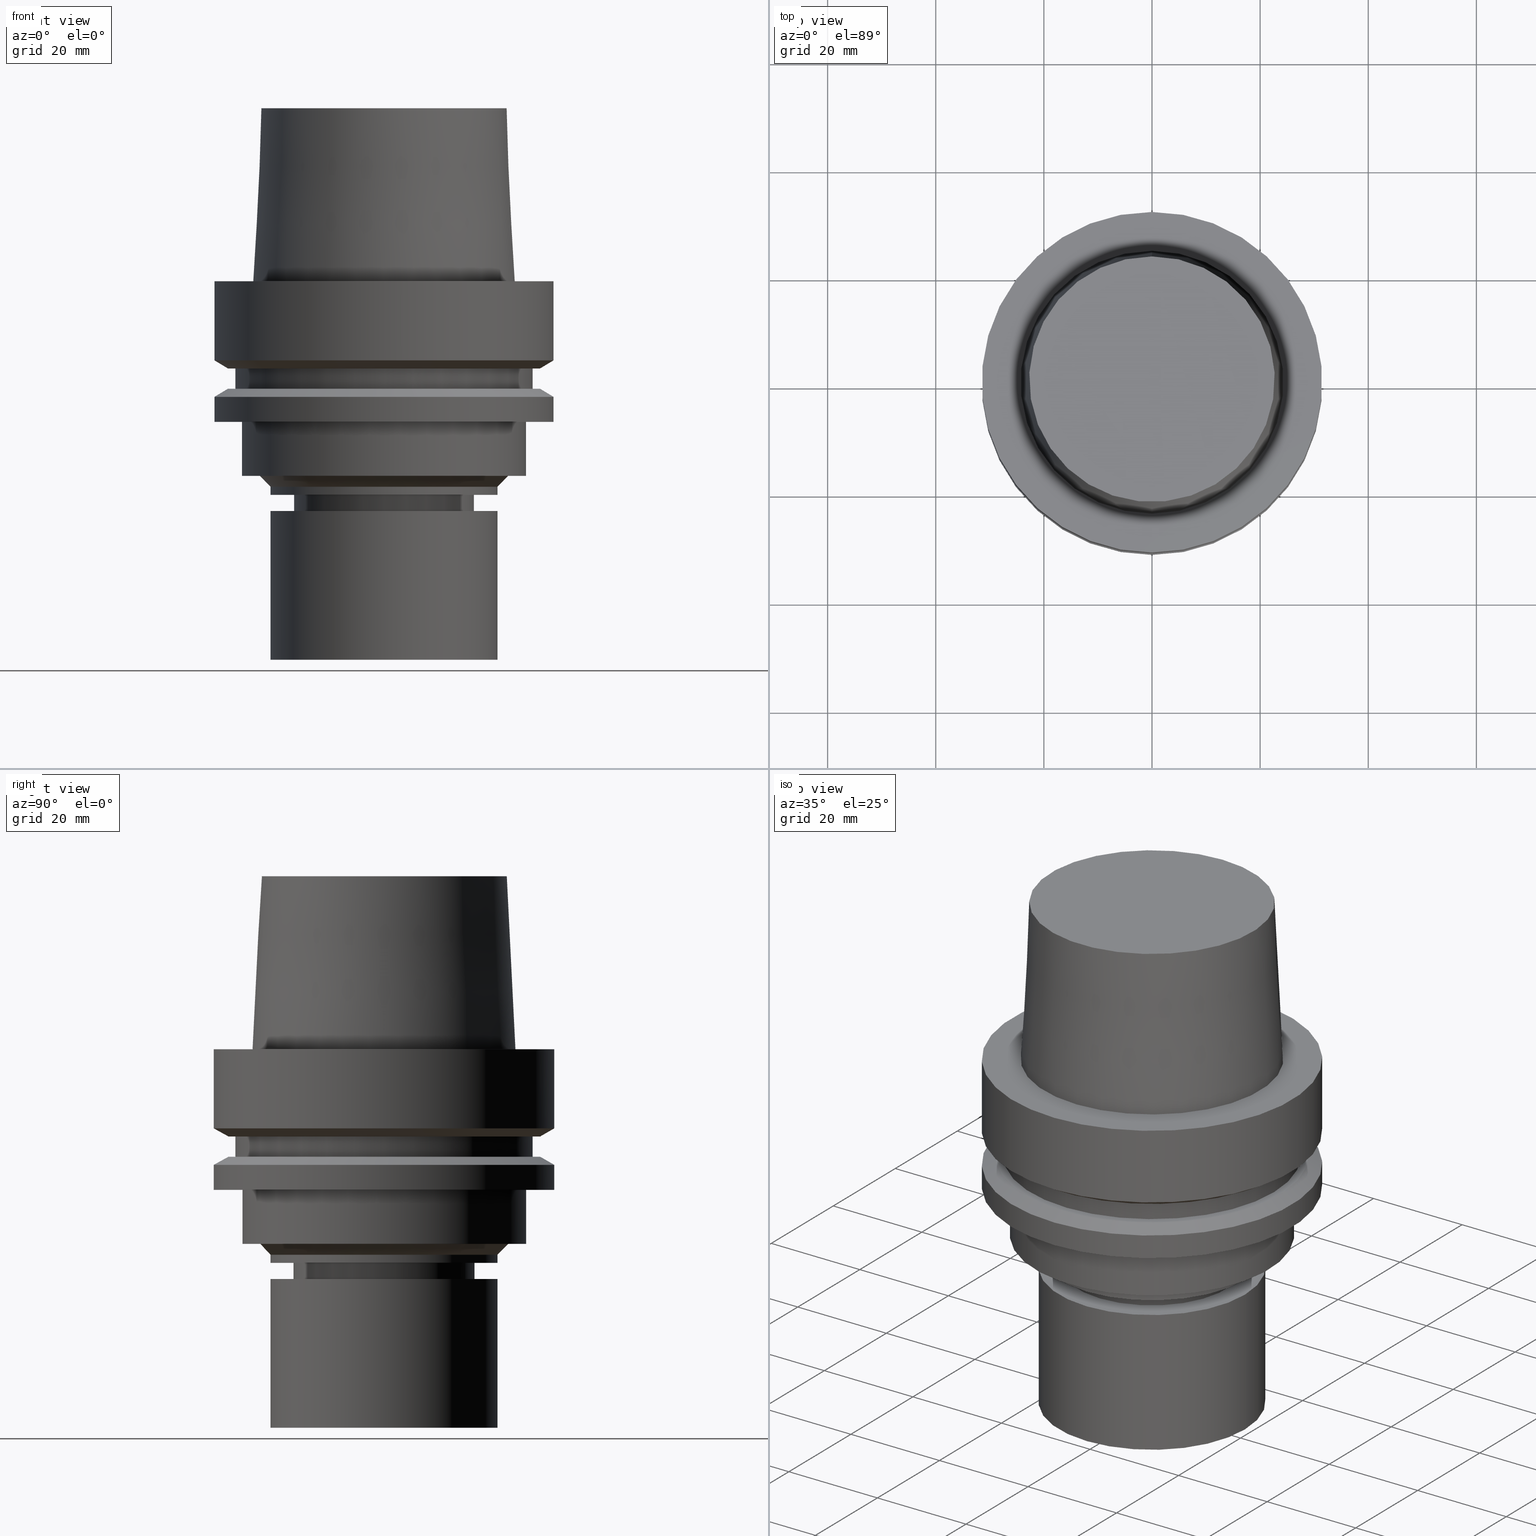
[diagram: canonical four-view strip — front | top / right | iso, engineering-drawing reading convention]
A machine part, canonical four-view strip (front | top / right | iso — engineering-drawing reading convention). The complete STEP part file that produces these views, byte-faithful:
ISO-10303-21;
HEADER;
FILE_DESCRIPTION((''),'1');
FILE_NAME('U:/Translate/02_3D_Field-HP\X2\FF71FF6FFF8CFF9F5916\X0\2013/02_Step_Field-HP\X2\FF71FF6FFF8CFF9F5916\X0\2013/HSK-A63-MEGAER25-70NL.stp','2016-06-22T00:03:57',(''),(''),'Spatial Interop R21 SP3','Kubotek KeyCreator 2011 V10.0.2 (22737)',' ');
FILE_SCHEMA(('automotive_design'));
ENDSEC;
DATA;
#1=MECHANICAL_DESIGN_GEOMETRIC_PRESENTATION_REPRESENTATION(' ',(#14,#15,#16,#17,#18,#19,#20,#21,#22,#23,#24,#25,#26,#27,#28,#29,#30,#31,#32,#33,#34,#35,#36,#37,#38,#39,#40,#41,#42,#43,#44,#45,#46,#47,#48,#49,#50,#51,#52,#53,#54,#55,#56,#57,#58,#59,#60,#61),#10);
#2=PRODUCT_DEFINITION_CONTEXT('',#62,'design');
#3=APPLICATION_PROTOCOL_DEFINITION('INTERNATIONAL STANDARD','automotive_design',1994,#62);
#4=PRODUCT_CATEGORY_RELATIONSHIP('NONE','NONE',#63,#64);
#5=SHAPE_DEFINITION_REPRESENTATION(#65,#66);
#6=PRODUCT_DEFINITION_CONTEXT('',#67,'design');
#7=APPLICATION_PROTOCOL_DEFINITION('INTERNATIONAL STANDARD','automotive_design',1994,#67);
#8=PRODUCT_CATEGORY_RELATIONSHIP('NONE','NONE',#68,#69);
#9=SHAPE_DEFINITION_REPRESENTATION(#70,#71);
#10= (GEOMETRIC_REPRESENTATION_CONTEXT(3)GLOBAL_UNCERTAINTY_ASSIGNED_CONTEXT((#74))GLOBAL_UNIT_ASSIGNED_CONTEXT((#76,#77,#78))REPRESENTATION_CONTEXT('NONE','WORKSPACE'));
#14=STYLED_ITEM('',(#80),#81);
#15=STYLED_ITEM('',(#82),#83);
#16=STYLED_ITEM('',(#84,#85),#86);
#17=STYLED_ITEM('',(#87,#88),#89);
#18=STYLED_ITEM('',(#90),#91);
#19=STYLED_ITEM('',(#92),#93);
#20=STYLED_ITEM('',(#94,#95),#96);
#21=STYLED_ITEM('',(#97),#98);
#22=STYLED_ITEM('',(#99),#100);
#23=STYLED_ITEM('',(#101,#102),#103);
#24=STYLED_ITEM('',(#104),#105);
#25=STYLED_ITEM('',(#106,#107),#108);
#26=STYLED_ITEM('',(#109,#110),#111);
#27=STYLED_ITEM('',(#112),#113);
#28=STYLED_ITEM('',(#114),#115);
#29=STYLED_ITEM('',(#116,#117),#118);
#30=STYLED_ITEM('',(#119),#120);
#31=STYLED_ITEM('',(#121,#122),#123);
#32=STYLED_ITEM('',(#124,#125),#126);
#33=STYLED_ITEM('',(#127),#128);
#34=STYLED_ITEM('',(#129,#130),#131);
#35=STYLED_ITEM('',(#132,#133),#134);
#36=STYLED_ITEM('',(#135),#136);
#37=STYLED_ITEM('',(#137),#138);
#38=STYLED_ITEM('',(#139),#140);
#39=STYLED_ITEM('',(#141),#142);
#40=STYLED_ITEM('',(#143),#144);
#41=STYLED_ITEM('',(#145,#146),#147);
#42=STYLED_ITEM('',(#148,#149),#150);
#43=STYLED_ITEM('',(#151),#152);
#44=STYLED_ITEM('',(#153,#154),#155);
#45=STYLED_ITEM('',(#156,#157),#158);
#46=STYLED_ITEM('',(#159,#160),#161);
#47=STYLED_ITEM('',(#162),#163);
#48=STYLED_ITEM('',(#164,#165),#166);
#49=STYLED_ITEM('',(#167),#168);
#50=STYLED_ITEM('',(#169,#170),#171);
#51=STYLED_ITEM('',(#172,#173),#174);
#52=STYLED_ITEM('',(#175),#176);
#53=STYLED_ITEM('',(#177),#178);
#54=STYLED_ITEM('',(#179,#180),#181);
#55=STYLED_ITEM('',(#182,#183),#184);
#56=STYLED_ITEM('',(#185,#186),#187);
#57=STYLED_ITEM('',(#188,#189),#190);
#58=STYLED_ITEM('',(#191),#192);
#59=STYLED_ITEM('',(#193,#194),#195);
#60=STYLED_ITEM('',(#196,#197),#198);
#61=STYLED_ITEM('',(#199,#200),#201);
#62=APPLICATION_CONTEXT(' ');
#63=PRODUCT_CATEGORY('part','NONE');
#64=PRODUCT_RELATED_PRODUCT_CATEGORY('detail',' ',(#202));
#65=PRODUCT_DEFINITION_SHAPE('NONE','NONE',#203);
#66=ADVANCED_BREP_SHAPE_REPRESENTATION('Unnamed[1]',(#158,#204),#10);
#67=APPLICATION_CONTEXT(' ');
#68=PRODUCT_CATEGORY('part','NONE');
#69=PRODUCT_RELATED_PRODUCT_CATEGORY('detail',' ',(#205));
#70=PRODUCT_DEFINITION_SHAPE('NONE','NONE',#206);
#71=ADVANCED_BREP_SHAPE_REPRESENTATION('Unnamed[1]',(#89,#207),#10);
#74=UNCERTAINTY_MEASURE_WITH_UNIT(LENGTH_MEASURE(1.0E-006),#76,'','');
#76= (CONVERSION_BASED_UNIT('MILLIMETRE',#210)LENGTH_UNIT()NAMED_UNIT(#213));
#77= (NAMED_UNIT(#215)PLANE_ANGLE_UNIT()SI_UNIT($,.RADIAN.));
#78= (NAMED_UNIT(#215)SOLID_ANGLE_UNIT()SI_UNIT($,.STERADIAN.));
#80=PRESENTATION_STYLE_ASSIGNMENT((#221));
#81=EDGE_CURVE('Unnamed[1]',#222,#222,#223,.T.);
#82=PRESENTATION_STYLE_ASSIGNMENT((#224));
#83=EDGE_CURVE('Unnamed[1]',#225,#225,#226,.T.);
#84=PRESENTATION_STYLE_ASSIGNMENT((#227));
#85=PRESENTATION_STYLE_ASSIGNMENT((#228));
#86=ADVANCED_FACE('Unnamed[1]',(#229,#230),#231,.T.);
#87=PRESENTATION_STYLE_ASSIGNMENT((#232));
#88=PRESENTATION_STYLE_ASSIGNMENT((#233));
#89=MANIFOLD_SOLID_BREP('Unnamed[1]',#234);
#90=PRESENTATION_STYLE_ASSIGNMENT((#235));
#91=EDGE_CURVE('Unnamed[1]',#236,#236,#237,.T.);
#92=PRESENTATION_STYLE_ASSIGNMENT((#238));
#93=EDGE_CURVE('Unnamed[1]',#239,#239,#240,.T.);
#94=PRESENTATION_STYLE_ASSIGNMENT((#241));
#95=PRESENTATION_STYLE_ASSIGNMENT((#242));
#96=ADVANCED_FACE('Unnamed[1]',(#243,#244),#245,.T.);
#97=PRESENTATION_STYLE_ASSIGNMENT((#246));
#98=EDGE_CURVE('Unnamed[1]',#247,#247,#248,.T.);
#99=PRESENTATION_STYLE_ASSIGNMENT((#249));
#100=EDGE_CURVE('Unnamed[1]',#250,#250,#251,.T.);
#101=PRESENTATION_STYLE_ASSIGNMENT((#252));
#102=PRESENTATION_STYLE_ASSIGNMENT((#253));
#103=ADVANCED_FACE('Unnamed[1]',(#254,#255),#256,.T.);
#104=PRESENTATION_STYLE_ASSIGNMENT((#257));
#105=EDGE_CURVE('Unnamed[1]',#258,#258,#259,.T.);
#106=PRESENTATION_STYLE_ASSIGNMENT((#260));
#107=PRESENTATION_STYLE_ASSIGNMENT((#261));
#108=ADVANCED_FACE('Unnamed[1]',(#262,#263),#264,.T.);
#109=PRESENTATION_STYLE_ASSIGNMENT((#265));
#110=PRESENTATION_STYLE_ASSIGNMENT((#266));
#111=ADVANCED_FACE('Unnamed[1]',(#267,#268),#269,.T.);
#112=PRESENTATION_STYLE_ASSIGNMENT((#270));
#113=EDGE_CURVE('Unnamed[1]',#271,#271,#272,.T.);
#114=PRESENTATION_STYLE_ASSIGNMENT((#273));
#115=EDGE_CURVE('Unnamed[1]',#274,#274,#275,.T.);
#116=PRESENTATION_STYLE_ASSIGNMENT((#276));
#117=PRESENTATION_STYLE_ASSIGNMENT((#277));
#118=ADVANCED_FACE('Unnamed[1]',(#278,#279),#280,.T.);
#119=PRESENTATION_STYLE_ASSIGNMENT((#281));
#120=EDGE_CURVE('Unnamed[1]',#282,#282,#283,.T.);
#121=PRESENTATION_STYLE_ASSIGNMENT((#284));
#122=PRESENTATION_STYLE_ASSIGNMENT((#285));
#123=ADVANCED_FACE('Unnamed[1]',(#286,#287),#288,.T.);
#124=PRESENTATION_STYLE_ASSIGNMENT((#289));
#125=PRESENTATION_STYLE_ASSIGNMENT((#290));
#126=ADVANCED_FACE('Unnamed[1]',(#291,#292),#293,.T.);
#127=PRESENTATION_STYLE_ASSIGNMENT((#294));
#128=EDGE_CURVE('Unnamed[1]',#295,#295,#296,.T.);
#129=PRESENTATION_STYLE_ASSIGNMENT((#297));
#130=PRESENTATION_STYLE_ASSIGNMENT((#298));
#131=ADVANCED_FACE('Unnamed[1]',(#299,#300),#301,.T.);
#132=PRESENTATION_STYLE_ASSIGNMENT((#302));
#133=PRESENTATION_STYLE_ASSIGNMENT((#303));
#134=ADVANCED_FACE('Unnamed[1]',(#304,#305),#306,.T.);
#135=PRESENTATION_STYLE_ASSIGNMENT((#307));
#136=EDGE_CURVE('Unnamed[1]',#308,#308,#309,.T.);
#137=PRESENTATION_STYLE_ASSIGNMENT((#310));
#138=EDGE_CURVE('Unnamed[1]',#311,#311,#312,.T.);
#139=PRESENTATION_STYLE_ASSIGNMENT((#313));
#140=EDGE_CURVE('Unnamed[1]',#314,#314,#315,.T.);
#141=PRESENTATION_STYLE_ASSIGNMENT((#316));
#142=EDGE_CURVE('Unnamed[1]',#317,#317,#318,.T.);
#143=PRESENTATION_STYLE_ASSIGNMENT((#319));
#144=EDGE_CURVE('Unnamed[1]',#320,#320,#321,.T.);
#145=PRESENTATION_STYLE_ASSIGNMENT((#322));
#146=PRESENTATION_STYLE_ASSIGNMENT((#323));
#147=ADVANCED_FACE('Unnamed[1]',(#324,#325),#326,.T.);
#148=PRESENTATION_STYLE_ASSIGNMENT((#327));
#149=PRESENTATION_STYLE_ASSIGNMENT((#328));
#150=ADVANCED_FACE('Unnamed[1]',(#329,#330),#331,.T.);
#151=PRESENTATION_STYLE_ASSIGNMENT((#332));
#152=EDGE_CURVE('Unnamed[1]',#333,#333,#334,.T.);
#153=PRESENTATION_STYLE_ASSIGNMENT((#335));
#154=PRESENTATION_STYLE_ASSIGNMENT((#336));
#155=ADVANCED_FACE('Unnamed[1]',(#337,#338),#339,.T.);
#156=PRESENTATION_STYLE_ASSIGNMENT((#340));
#157=PRESENTATION_STYLE_ASSIGNMENT((#341));
#158=MANIFOLD_SOLID_BREP('Unnamed[1]',#342);
#159=PRESENTATION_STYLE_ASSIGNMENT((#343));
#160=PRESENTATION_STYLE_ASSIGNMENT((#344));
#161=ADVANCED_FACE('Unnamed[1]',(#345,#346),#347,.T.);
#162=PRESENTATION_STYLE_ASSIGNMENT((#348));
#163=EDGE_CURVE('Unnamed[1]',#349,#349,#350,.T.);
#164=PRESENTATION_STYLE_ASSIGNMENT((#351));
#165=PRESENTATION_STYLE_ASSIGNMENT((#352));
#166=ADVANCED_FACE('Unnamed[1]',(#353,#354),#355,.T.);
#167=PRESENTATION_STYLE_ASSIGNMENT((#356));
#168=EDGE_CURVE('Unnamed[1]',#357,#357,#358,.T.);
#169=PRESENTATION_STYLE_ASSIGNMENT((#359));
#170=PRESENTATION_STYLE_ASSIGNMENT((#360));
#171=ADVANCED_FACE('Unnamed[1]',(#361,#362),#363,.T.);
#172=PRESENTATION_STYLE_ASSIGNMENT((#364));
#173=PRESENTATION_STYLE_ASSIGNMENT((#365));
#174=ADVANCED_FACE('Unnamed[1]',(#366,#367),#368,.T.);
#175=PRESENTATION_STYLE_ASSIGNMENT((#369));
#176=EDGE_CURVE('Unnamed[1]',#370,#370,#371,.T.);
#177=PRESENTATION_STYLE_ASSIGNMENT((#372));
#178=EDGE_CURVE('Unnamed[1]',#373,#373,#374,.T.);
#179=PRESENTATION_STYLE_ASSIGNMENT((#375));
#180=PRESENTATION_STYLE_ASSIGNMENT((#376));
#181=ADVANCED_FACE('Unnamed[1]',(#377,#378),#379,.T.);
#182=PRESENTATION_STYLE_ASSIGNMENT((#380));
#183=PRESENTATION_STYLE_ASSIGNMENT((#381));
#184=ADVANCED_FACE('Unnamed[1]',(#382),#383,.T.);
#185=PRESENTATION_STYLE_ASSIGNMENT((#384));
#186=PRESENTATION_STYLE_ASSIGNMENT((#385));
#187=ADVANCED_FACE('Unnamed[1]',(#386),#387,.T.);
#188=PRESENTATION_STYLE_ASSIGNMENT((#388));
#189=PRESENTATION_STYLE_ASSIGNMENT((#389));
#190=ADVANCED_FACE('Unnamed[1]',(#390),#391,.T.);
#191=PRESENTATION_STYLE_ASSIGNMENT((#392));
#192=EDGE_CURVE('Unnamed[1]',#393,#393,#394,.T.);
#193=PRESENTATION_STYLE_ASSIGNMENT((#395));
#194=PRESENTATION_STYLE_ASSIGNMENT((#396));
#195=ADVANCED_FACE('Unnamed[1]',(#397),#398,.T.);
#196=PRESENTATION_STYLE_ASSIGNMENT((#399));
#197=PRESENTATION_STYLE_ASSIGNMENT((#400));
#198=ADVANCED_FACE('Unnamed[1]',(#401,#402),#403,.T.);
#199=PRESENTATION_STYLE_ASSIGNMENT((#404));
#200=PRESENTATION_STYLE_ASSIGNMENT((#405));
#201=ADVANCED_FACE('Unnamed[1]',(#406,#407),#408,.T.);
#202=PRODUCT('Unnamed[1]','Unnamed[1]','PART-Unnamed[1]-DESC',(#409));
#203=PRODUCT_DEFINITION('NONE','NONE',#410,#2);
#204=AXIS2_PLACEMENT_3D('',#411,#412,#413);
#205=PRODUCT('Unnamed[1]','Unnamed[1]','PART-Unnamed[1]-DESC',(#414));
#206=PRODUCT_DEFINITION('NONE','NONE',#415,#6);
#207=AXIS2_PLACEMENT_3D('',#416,#417,#418);
#210=LENGTH_MEASURE_WITH_UNIT(LENGTH_MEASURE(1.0),#419);
#213=DIMENSIONAL_EXPONENTS(1.0,0.0,0.0,0.0,0.0,0.0,0.0);
#215=DIMENSIONAL_EXPONENTS(0.0,0.0,0.0,0.0,0.0,0.0,0.0);
#221=CURVE_STYLE('',#420,POSITIVE_LENGTH_MEASURE(1000.0),#421);
#222=VERTEX_POINT('',#422);
#223=CIRCLE('',#423,27.4999999999989);
#224=CURVE_STYLE('',#424,POSITIVE_LENGTH_MEASURE(1000.0),#425);
#225=VERTEX_POINT('',#426);
#226=CIRCLE('',#427,24.315);
#227=SURFACE_STYLE_USAGE(.BOTH.,#428);
#228=CURVE_STYLE('',#429,POSITIVE_LENGTH_MEASURE(1000.0),#430);
#229=FACE_BOUND('',#431,.T.);
#230=FACE_BOUND('',#432,.T.);
#231=CYLINDRICAL_SURFACE('',#433,16.7499999999962);
#232=SURFACE_STYLE_USAGE(.BOTH.,#434);
#233=CURVE_STYLE('',#435,POSITIVE_LENGTH_MEASURE(1000.0),#436);
#234=CLOSED_SHELL('',(#187,#190,#108));
#235=CURVE_STYLE('',#437,POSITIVE_LENGTH_MEASURE(1000.0),#438);
#236=VERTEX_POINT('',#439);
#237=CIRCLE('',#440,26.3);
#238=CURVE_STYLE('',#441,POSITIVE_LENGTH_MEASURE(1000.0),#442);
#239=VERTEX_POINT('',#443);
#240=CIRCLE('',#444,21.0);
#241=SURFACE_STYLE_USAGE(.BOTH.,#445);
#242=CURVE_STYLE('',#446,POSITIVE_LENGTH_MEASURE(1000.0),#447);
#243=FACE_BOUND('',#448,.T.);
#244=FACE_BOUND('',#449,.T.);
#245=CONICAL_SURFACE('',#450,23.515,0.0499583957219433);
#246=CURVE_STYLE('',#451,POSITIVE_LENGTH_MEASURE(1000.0),#452);
#247=VERTEX_POINT('',#453);
#248=CIRCLE('',#454,22.715);
#249=CURVE_STYLE('',#455,POSITIVE_LENGTH_MEASURE(1000.0),#456);
#250=VERTEX_POINT('',#457);
#251=CIRCLE('',#458,16.7500000000017);
#252=SURFACE_STYLE_USAGE(.BOTH.,#459);
#253=CURVE_STYLE('',#460,POSITIVE_LENGTH_MEASURE(1000.0),#461);
#254=FACE_BOUND('',#462,.T.);
#255=FACE_BOUND('',#463,.T.);
#256=CONICAL_SURFACE('',#464,22.0,0.785398163397448);
#257=CURVE_STYLE('',#465,POSITIVE_LENGTH_MEASURE(1000.0),#466);
#258=VERTEX_POINT('',#467);
#259=CIRCLE('',#468,31.5000000000001);
#260=SURFACE_STYLE_USAGE(.BOTH.,#469);
#261=CURVE_STYLE('',#470,POSITIVE_LENGTH_MEASURE(1000.0),#471);
#262=FACE_BOUND('',#472,.T.);
#263=FACE_BOUND('',#473,.T.);
#264=CYLINDRICAL_SURFACE('',#474,21.0);
#265=SURFACE_STYLE_USAGE(.BOTH.,#475);
#266=CURVE_STYLE('',#476,POSITIVE_LENGTH_MEASURE(1000.0),#477);
#267=FACE_BOUND('',#478,.T.);
#268=FACE_OUTER_BOUND('',#479,.T.);
#269=PLANE('',#480);
#270=CURVE_STYLE('',#481,POSITIVE_LENGTH_MEASURE(1000.0),#482);
#271=VERTEX_POINT('',#483);
#272=CIRCLE('',#484,16.0);
#273=CURVE_STYLE('',#485,POSITIVE_LENGTH_MEASURE(1000.0),#486);
#274=VERTEX_POINT('',#487);
#275=CIRCLE('',#488,31.5);
#276=SURFACE_STYLE_USAGE(.BOTH.,#489);
#277=CURVE_STYLE('',#490,POSITIVE_LENGTH_MEASURE(1000.0),#491);
#278=FACE_BOUND('',#492,.T.);
#279=FACE_BOUND('',#493,.T.);
#280=CONICAL_SURFACE('',#494,30.1987976320959,1.04719755119657);
#281=CURVE_STYLE('',#495,POSITIVE_LENGTH_MEASURE(1000.0),#496);
#282=VERTEX_POINT('',#497);
#283=CIRCLE('',#498,27.5);
#284=SURFACE_STYLE_USAGE(.BOTH.,#499);
#285=CURVE_STYLE('',#500,POSITIVE_LENGTH_MEASURE(1000.0),#501);
#286=FACE_BOUND('',#502,.T.);
#287=FACE_BOUND('',#503,.T.);
#288=CYLINDRICAL_SURFACE('',#504,26.3);
#289=SURFACE_STYLE_USAGE(.BOTH.,#505);
#290=CURVE_STYLE('',#506,POSITIVE_LENGTH_MEASURE(1000.0),#507);
#291=FACE_BOUND('',#508,.T.);
#292=FACE_BOUND('',#509,.T.);
#293=CONICAL_SURFACE('',#510,30.1987976320959,1.04719755119657);
#294=CURVE_STYLE('',#511,POSITIVE_LENGTH_MEASURE(1000.0),#512);
#295=VERTEX_POINT('',#513);
#296=CIRCLE('',#514,28.8975952641919);
#297=SURFACE_STYLE_USAGE(.BOTH.,#515);
#298=CURVE_STYLE('',#516,POSITIVE_LENGTH_MEASURE(1000.0),#517);
#299=FACE_OUTER_BOUND('',#518,.T.);
#300=FACE_BOUND('',#519,.T.);
#301=PLANE('',#520);
#302=SURFACE_STYLE_USAGE(.BOTH.,#521);
#303=CURVE_STYLE('',#522,POSITIVE_LENGTH_MEASURE(1000.0),#523);
#304=FACE_BOUND('',#524,.T.);
#305=FACE_BOUND('',#525,.T.);
#306=CYLINDRICAL_SURFACE('',#526,16.0);
#307=CURVE_STYLE('',#527,POSITIVE_LENGTH_MEASURE(1000.0),#528);
#308=VERTEX_POINT('',#529);
#309=CIRCLE('',#530,14.9000000000006);
#310=CURVE_STYLE('',#531,POSITIVE_LENGTH_MEASURE(1000.0),#532);
#311=VERTEX_POINT('',#533);
#312=CIRCLE('',#534,23.0);
#313=CURVE_STYLE('',#535,POSITIVE_LENGTH_MEASURE(1000.0),#536);
#314=VERTEX_POINT('',#537);
#315=CIRCLE('',#538,31.5);
#316=CURVE_STYLE('',#539,POSITIVE_LENGTH_MEASURE(1000.0),#540);
#317=VERTEX_POINT('',#541);
#318=CIRCLE('',#542,26.3);
#319=CURVE_STYLE('',#543,POSITIVE_LENGTH_MEASURE(1000.0),#544);
#320=VERTEX_POINT('',#545);
#321=CIRCLE('',#546,31.4999999999998);
#322=SURFACE_STYLE_USAGE(.BOTH.,#547);
#323=CURVE_STYLE('',#548,POSITIVE_LENGTH_MEASURE(1000.0),#549);
#324=FACE_BOUND('',#550,.T.);
#325=FACE_BOUND('',#551,.T.);
#326=CYLINDRICAL_SURFACE('',#552,21.0);
#327=SURFACE_STYLE_USAGE(.BOTH.,#553);
#328=CURVE_STYLE('',#554,POSITIVE_LENGTH_MEASURE(1000.0),#555);
#329=FACE_OUTER_BOUND('',#556,.T.);
#330=FACE_BOUND('',#557,.T.);
#331=PLANE('',#558);
#332=CURVE_STYLE('',#559,POSITIVE_LENGTH_MEASURE(1000.0),#560);
#333=VERTEX_POINT('',#561);
#334=CIRCLE('',#562,28.8975952641919);
#335=SURFACE_STYLE_USAGE(.BOTH.,#563);
#336=CURVE_STYLE('',#564,POSITIVE_LENGTH_MEASURE(1000.0),#565);
#337=FACE_BOUND('',#566,.T.);
#338=FACE_BOUND('',#567,.T.);
#339=CYLINDRICAL_SURFACE('',#568,31.5);
#340=SURFACE_STYLE_USAGE(.BOTH.,#569);
#341=CURVE_STYLE('',#570,POSITIVE_LENGTH_MEASURE(1000.0),#571);
#342=CLOSED_SHELL('',(#195,#198,#134,#161,#86,#181,#147,#103,#171,#123,#150,#166,#126,#201,#174,#131,#118,#155,#111,#96,#184));
#343=SURFACE_STYLE_USAGE(.BOTH.,#572);
#344=CURVE_STYLE('',#573,POSITIVE_LENGTH_MEASURE(1000.0),#574);
#345=FACE_BOUND('',#575,.T.);
#346=FACE_BOUND('',#576,.T.);
#347=CONICAL_SURFACE('',#577,16.3750000000008,0.846178977409404);
#348=CURVE_STYLE('',#578,POSITIVE_LENGTH_MEASURE(1000.0),#579);
#349=VERTEX_POINT('',#580);
#350=CIRCLE('',#581,16.0);
#351=SURFACE_STYLE_USAGE(.BOTH.,#582);
#352=CURVE_STYLE('',#583,POSITIVE_LENGTH_MEASURE(1000.0),#584);
#353=FACE_BOUND('',#585,.T.);
#354=FACE_BOUND('',#586,.T.);
#355=CYLINDRICAL_SURFACE('',#587,31.4999999999999);
#356=CURVE_STYLE('',#588,POSITIVE_LENGTH_MEASURE(1000.0),#589);
#357=VERTEX_POINT('',#590);
#358=CIRCLE('',#591,21.0);
#359=SURFACE_STYLE_USAGE(.BOTH.,#592);
#360=CURVE_STYLE('',#593,POSITIVE_LENGTH_MEASURE(1000.0),#594);
#361=FACE_OUTER_BOUND('',#595,.T.);
#362=FACE_BOUND('',#596,.T.);
#363=PLANE('',#597);
#364=SURFACE_STYLE_USAGE(.BOTH.,#598);
#365=CURVE_STYLE('',#599,POSITIVE_LENGTH_MEASURE(1000.0),#600);
#366=FACE_BOUND('',#601,.T.);
#367=FACE_BOUND('',#602,.T.);
#368=CYLINDRICAL_SURFACE('',#603,27.4999999999994);
#369=CURVE_STYLE('',#604,POSITIVE_LENGTH_MEASURE(1000.0),#605);
#370=VERTEX_POINT('',#606);
#371=CIRCLE('',#607,21.0);
#372=CURVE_STYLE('',#608,POSITIVE_LENGTH_MEASURE(1000.0),#609);
#373=VERTEX_POINT('',#610);
#374=CIRCLE('',#611,16.7499999999907);
#375=SURFACE_STYLE_USAGE(.BOTH.,#612);
#376=CURVE_STYLE('',#613,POSITIVE_LENGTH_MEASURE(1000.0),#614);
#377=FACE_OUTER_BOUND('',#615,.T.);
#378=FACE_BOUND('',#616,.T.);
#379=PLANE('',#617);
#380=SURFACE_STYLE_USAGE(.BOTH.,#618);
#381=CURVE_STYLE('',#619,POSITIVE_LENGTH_MEASURE(1000.0),#620);
#382=FACE_OUTER_BOUND('',#621,.T.);
#383=PLANE('',#622);
#384=SURFACE_STYLE_USAGE(.BOTH.,#623);
#385=CURVE_STYLE('',#624,POSITIVE_LENGTH_MEASURE(1000.0),#625);
#386=FACE_OUTER_BOUND('',#626,.T.);
#387=PLANE('',#627);
#388=SURFACE_STYLE_USAGE(.BOTH.,#628);
#389=CURVE_STYLE('',#629,POSITIVE_LENGTH_MEASURE(1000.0),#630);
#390=FACE_OUTER_BOUND('',#631,.T.);
#391=PLANE('',#632);
#392=CURVE_STYLE('',#633,POSITIVE_LENGTH_MEASURE(1000.0),#634);
#393=VERTEX_POINT('',#635);
#394=CIRCLE('',#636,21.0);
#395=SURFACE_STYLE_USAGE(.BOTH.,#637);
#396=CURVE_STYLE('',#638,POSITIVE_LENGTH_MEASURE(1000.0),#639);
#397=FACE_OUTER_BOUND('',#640,.T.);
#398=PLANE('',#641);
#399=SURFACE_STYLE_USAGE(.BOTH.,#642);
#400=CURVE_STYLE('',#643,POSITIVE_LENGTH_MEASURE(1000.0),#644);
#401=FACE_BOUND('',#645,.T.);
#402=FACE_BOUND('',#646,.T.);
#403=CONICAL_SURFACE('',#647,15.4500000000003,0.523598775598046);
#404=SURFACE_STYLE_USAGE(.BOTH.,#648);
#405=CURVE_STYLE('',#649,POSITIVE_LENGTH_MEASURE(1000.0),#650);
#406=FACE_BOUND('',#651,.T.);
#407=FACE_OUTER_BOUND('',#652,.T.);
#408=PLANE('',#653);
#409=PRODUCT_CONTEXT('',#62,'mechanical');
#410=PRODUCT_DEFINITION_FORMATION_WITH_SPECIFIED_SOURCE(' ','NONE',#202,.NOT_KNOWN.);
#411=CARTESIAN_POINT('',(0.0,0.0,0.0));
#412=DIRECTION('',(0.0,0.0,1.0));
#413=DIRECTION('',(1.0,0.0,0.0));
#414=PRODUCT_CONTEXT('',#67,'mechanical');
#415=PRODUCT_DEFINITION_FORMATION_WITH_SPECIFIED_SOURCE(' ','NONE',#205,.NOT_KNOWN.);
#416=CARTESIAN_POINT('',(0.0,0.0,0.0));
#417=DIRECTION('',(0.0,0.0,1.0));
#418=DIRECTION('',(1.0,0.0,0.0));
#419= (NAMED_UNIT(#213)LENGTH_UNIT()SI_UNIT(.MILLI.,.METRE.));
#420=DRAUGHTING_PRE_DEFINED_CURVE_FONT('continuous');
#421=COLOUR_RGB('',0.0,1.0,0.0);
#422=CARTESIAN_POINT('',(1.21699275665276E-015,27.4999999999989,-19.8750000000013));
#423=AXIS2_PLACEMENT_3D('',#655,#656,#657);
#424=DRAUGHTING_PRE_DEFINED_CURVE_FONT('continuous');
#425=COLOUR_RGB('',0.0,1.0,0.0);
#426=CARTESIAN_POINT('',(-2.99705514225764E-031,24.315,2.97772869212679E-015));
#427=AXIS2_PLACEMENT_3D('',#658,#659,#660);
#428=SURFACE_SIDE_STYLE('',(#661));
#429=DRAUGHTING_PRE_DEFINED_CURVE_FONT('continuous');
#430=COLOUR_RGB('',0.0,1.0,0.0);
#431=EDGE_LOOP('',(#662));
#432=EDGE_LOOP('',(#663));
#433=AXIS2_PLACEMENT_3D('',#664,#665,#666);
#434=SURFACE_SIDE_STYLE('',(#667));
#435=DRAUGHTING_PRE_DEFINED_CURVE_FONT('continuous');
#436=COLOUR_RGB('',0.0,1.0,0.0);
#437=DRAUGHTING_PRE_DEFINED_CURVE_FONT('continuous');
#438=COLOUR_RGB('',0.0,1.0,0.0);
#439=CARTESIAN_POINT('',(2.20436423846524E-015,26.3,-36.0));
#440=AXIS2_PLACEMENT_3D('',#668,#669,#670);
#441=DRAUGHTING_PRE_DEFINED_CURVE_FONT('continuous');
#442=COLOUR_RGB('',0.0,1.0,0.0);
#443=CARTESIAN_POINT('',(4.28626379701574E-015,21.0,-70.0));
#444=AXIS2_PLACEMENT_3D('',#671,#672,#673);
#445=SURFACE_SIDE_STYLE('',(#674));
#446=DRAUGHTING_PRE_DEFINED_CURVE_FONT('continuous');
#447=COLOUR_RGB('',0.0,1.0,0.0);
#448=EDGE_LOOP('',(#675));
#449=EDGE_LOOP('',(#676));
#450=AXIS2_PLACEMENT_3D('',#677,#678,#679);
#451=DRAUGHTING_PRE_DEFINED_CURVE_FONT('continuous');
#452=COLOUR_RGB('',0.0,1.0,0.0);
#453=CARTESIAN_POINT('',(-1.95943487863576E-015,22.715,32.0));
#454=AXIS2_PLACEMENT_3D('',#680,#681,#682);
#455=DRAUGHTING_PRE_DEFINED_CURVE_FONT('continuous');
#456=COLOUR_RGB('',0.0,1.0,0.0);
#457=CARTESIAN_POINT('',(2.78407069311031E-015,16.7500000000017,-45.4673248654009));
#458=AXIS2_PLACEMENT_3D('',#683,#684,#685);
#459=SURFACE_SIDE_STYLE('',(#686));
#460=DRAUGHTING_PRE_DEFINED_CURVE_FONT('continuous');
#461=COLOUR_RGB('',0.0,1.0,0.0);
#462=EDGE_LOOP('',(#687));
#463=EDGE_LOOP('',(#688));
#464=AXIS2_PLACEMENT_3D('',#689,#690,#691);
#465=DRAUGHTING_PRE_DEFINED_CURVE_FONT('continuous');
#466=COLOUR_RGB('',0.0,1.0,0.0);
#467=CARTESIAN_POINT('',(-3.88267476788467E-031,31.5000000000001,3.85763741731417E-015));
#468=AXIS2_PLACEMENT_3D('',#692,#693,#694);
#469=SURFACE_SIDE_STYLE('',(#695));
#470=DRAUGHTING_PRE_DEFINED_CURVE_FONT('continuous');
#471=COLOUR_RGB('',0.0,1.0,0.0);
#472=EDGE_LOOP('',(#696));
#473=EDGE_LOOP('',(#697));
#474=AXIS2_PLACEMENT_3D('',#698,#699,#700);
#475=SURFACE_SIDE_STYLE('',(#701));
#476=DRAUGHTING_PRE_DEFINED_CURVE_FONT('continuous');
#477=COLOUR_RGB('',0.0,1.0,0.0);
#478=EDGE_LOOP('',(#702));
#479=EDGE_LOOP('',(#703));
#480=AXIS2_PLACEMENT_3D('',#704,#705,#706);
#481=DRAUGHTING_PRE_DEFINED_CURVE_FONT('continuous');
#482=COLOUR_RGB('',0.0,1.0,0.0);
#483=CARTESIAN_POINT('',(2.8247260772613E-015,16.0,-46.131277674967));
#484=AXIS2_PLACEMENT_3D('',#707,#708,#709);
#485=DRAUGHTING_PRE_DEFINED_CURVE_FONT('continuous');
#486=COLOUR_RGB('',0.0,1.0,0.0);
#487=CARTESIAN_POINT('',(8.95369947681261E-016,31.5,-14.6225009252407));
#488=AXIS2_PLACEMENT_3D('',#710,#711,#712);
#489=SURFACE_SIDE_STYLE('',(#713));
#490=DRAUGHTING_PRE_DEFINED_CURVE_FONT('continuous');
#491=COLOUR_RGB('',0.0,1.0,0.0);
#492=EDGE_LOOP('',(#714));
#493=EDGE_LOOP('',(#715));
#494=AXIS2_PLACEMENT_3D('',#716,#717,#718);
#495=DRAUGHTING_PRE_DEFINED_CURVE_FONT('continuous');
#496=COLOUR_RGB('',0.0,1.0,0.0);
#497=CARTESIAN_POINT('',(9.87371481812537E-016,27.5,-16.1249999999997));
#498=AXIS2_PLACEMENT_3D('',#719,#720,#721);
#499=SURFACE_SIDE_STYLE('',(#722));
#500=DRAUGHTING_PRE_DEFINED_CURVE_FONT('continuous');
#501=COLOUR_RGB('',0.0,1.0,0.0);
#502=EDGE_LOOP('',(#723));
#503=EDGE_LOOP('',(#724));
#504=AXIS2_PLACEMENT_3D('',#725,#726,#727);
#505=SURFACE_SIDE_STYLE('',(#728));
#506=DRAUGHTING_PRE_DEFINED_CURVE_FONT('continuous');
#507=COLOUR_RGB('',0.0,1.0,0.0);
#508=EDGE_LOOP('',(#729));
#509=EDGE_LOOP('',(#730));
#510=AXIS2_PLACEMENT_3D('',#731,#732,#733);
#511=DRAUGHTING_PRE_DEFINED_CURVE_FONT('continuous');
#512=COLOUR_RGB('',0.0,1.0,0.0);
#513=CARTESIAN_POINT('',(9.87371481812551E-016,28.8975952641919,-16.125));
#514=AXIS2_PLACEMENT_3D('',#734,#735,#736);
#515=SURFACE_SIDE_STYLE('',(#737));
#516=DRAUGHTING_PRE_DEFINED_CURVE_FONT('continuous');
#517=COLOUR_RGB('',0.0,1.0,0.0);
#518=EDGE_LOOP('',(#738));
#519=EDGE_LOOP('',(#739));
#520=AXIS2_PLACEMENT_3D('',#740,#741,#742);
#521=SURFACE_SIDE_STYLE('',(#743));
#522=DRAUGHTING_PRE_DEFINED_CURVE_FONT('continuous');
#523=COLOUR_RGB('',0.0,1.0,0.0);
#524=EDGE_LOOP('',(#744));
#525=EDGE_LOOP('',(#745));
#526=AXIS2_PLACEMENT_3D('',#746,#747,#748);
#527=DRAUGHTING_PRE_DEFINED_CURVE_FONT('continuous');
#528=COLOUR_RGB('',0.0,1.0,0.0);
#529=CARTESIAN_POINT('',(3.6616939294506E-015,14.9000000000006,-59.8000000000002));
#530=AXIS2_PLACEMENT_3D('',#749,#750,#751);
#531=DRAUGHTING_PRE_DEFINED_CURVE_FONT('continuous');
#532=COLOUR_RGB('',0.0,1.0,0.0);
#533=CARTESIAN_POINT('',(2.20436423846524E-015,23.0,-36.0));
#534=AXIS2_PLACEMENT_3D('',#752,#753,#754);
#535=DRAUGHTING_PRE_DEFINED_CURVE_FONT('continuous');
#536=COLOUR_RGB('',0.0,1.0,0.0);
#537=CARTESIAN_POINT('',(1.30899429078397E-015,31.5,-21.3774990747592));
#538=AXIS2_PLACEMENT_3D('',#755,#756,#757);
#539=DRAUGHTING_PRE_DEFINED_CURVE_FONT('continuous');
#540=COLOUR_RGB('',0.0,1.0,0.0);
#541=CARTESIAN_POINT('',(1.59204083889154E-015,26.3,-25.9999999999996));
#542=AXIS2_PLACEMENT_3D('',#758,#759,#760);
#543=DRAUGHTING_PRE_DEFINED_CURVE_FONT('continuous');
#544=COLOUR_RGB('',0.0,1.0,0.0);
#545=CARTESIAN_POINT('',(1.59204083889155E-015,31.4999999999998,-25.9999999999999));
#546=AXIS2_PLACEMENT_3D('',#761,#762,#763);
#547=SURFACE_SIDE_STYLE('',(#764));
#548=DRAUGHTING_PRE_DEFINED_CURVE_FONT('continuous');
#549=COLOUR_RGB('',0.0,1.0,0.0);
#550=EDGE_LOOP('',(#765));
#551=EDGE_LOOP('',(#766));
#552=AXIS2_PLACEMENT_3D('',#767,#768,#769);
#553=SURFACE_SIDE_STYLE('',(#770));
#554=DRAUGHTING_PRE_DEFINED_CURVE_FONT('continuous');
#555=COLOUR_RGB('',0.0,1.0,0.0);
#556=EDGE_LOOP('',(#771));
#557=EDGE_LOOP('',(#772));
#558=AXIS2_PLACEMENT_3D('',#773,#774,#775);
#559=DRAUGHTING_PRE_DEFINED_CURVE_FONT('continuous');
#560=COLOUR_RGB('',0.0,1.0,0.0);
#561=CARTESIAN_POINT('',(1.21699275665268E-015,28.8975952641919,-19.875));
#562=AXIS2_PLACEMENT_3D('',#776,#777,#778);
#563=SURFACE_SIDE_STYLE('',(#779));
#564=DRAUGHTING_PRE_DEFINED_CURVE_FONT('continuous');
#565=COLOUR_RGB('',0.0,1.0,0.0);
#566=EDGE_LOOP('',(#780));
#567=EDGE_LOOP('',(#781));
#568=AXIS2_PLACEMENT_3D('',#782,#783,#784);
#569=SURFACE_SIDE_STYLE('',(#785));
#570=DRAUGHTING_PRE_DEFINED_CURVE_FONT('continuous');
#571=COLOUR_RGB('',0.0,1.0,0.0);
#572=SURFACE_SIDE_STYLE('',(#786));
#573=DRAUGHTING_PRE_DEFINED_CURVE_FONT('continuous');
#574=COLOUR_RGB('',0.0,1.0,0.0);
#575=EDGE_LOOP('',(#787));
#576=EDGE_LOOP('',(#788));
#577=AXIS2_PLACEMENT_3D('',#789,#790,#791);
#578=DRAUGHTING_PRE_DEFINED_CURVE_FONT('continuous');
#579=COLOUR_RGB('',0.0,1.0,0.0);
#580=CARTESIAN_POINT('',(3.54503065319085E-015,16.0,-57.8947441116744));
#581=AXIS2_PLACEMENT_3D('',#792,#793,#794);
#582=SURFACE_SIDE_STYLE('',(#795));
#583=DRAUGHTING_PRE_DEFINED_CURVE_FONT('continuous');
#584=COLOUR_RGB('',0.0,1.0,0.0);
#585=EDGE_LOOP('',(#796));
#586=EDGE_LOOP('',(#797));
#587=AXIS2_PLACEMENT_3D('',#798,#799,#800);
#588=DRAUGHTING_PRE_DEFINED_CURVE_FONT('continuous');
#589=COLOUR_RGB('',0.0,1.0,0.0);
#590=CARTESIAN_POINT('',(2.32682891837997E-015,21.0,-38.0));
#591=AXIS2_PLACEMENT_3D('',#801,#802,#803);
#592=SURFACE_SIDE_STYLE('',(#804));
#593=DRAUGHTING_PRE_DEFINED_CURVE_FONT('continuous');
#594=COLOUR_RGB('',0.0,1.0,0.0);
#595=EDGE_LOOP('',(#805));
#596=EDGE_LOOP('',(#806));
#597=AXIS2_PLACEMENT_3D('',#807,#808,#809);
#598=SURFACE_SIDE_STYLE('',(#810));
#599=DRAUGHTING_PRE_DEFINED_CURVE_FONT('continuous');
#600=COLOUR_RGB('',0.0,1.0,0.0);
#601=EDGE_LOOP('',(#811));
#602=EDGE_LOOP('',(#812));
#603=AXIS2_PLACEMENT_3D('',#813,#814,#815);
#604=DRAUGHTING_PRE_DEFINED_CURVE_FONT('continuous');
#605=COLOUR_RGB('',0.0,1.0,0.0);
#606=CARTESIAN_POINT('',(2.41867742831602E-015,21.0,-39.5));
#607=AXIS2_PLACEMENT_3D('',#816,#817,#818);
#608=DRAUGHTING_PRE_DEFINED_CURVE_FONT('continuous');
#609=COLOUR_RGB('',0.0,1.0,0.0);
#610=CARTESIAN_POINT('',(2.41867742831597E-015,16.7499999999907,-39.4999999999992));
#611=AXIS2_PLACEMENT_3D('',#819,#820,#821);
#612=SURFACE_SIDE_STYLE('',(#822));
#613=DRAUGHTING_PRE_DEFINED_CURVE_FONT('continuous');
#614=COLOUR_RGB('',0.0,1.0,0.0);
#615=EDGE_LOOP('',(#823));
#616=EDGE_LOOP('',(#824));
#617=AXIS2_PLACEMENT_3D('',#825,#826,#827);
#618=SURFACE_SIDE_STYLE('',(#828));
#619=DRAUGHTING_PRE_DEFINED_CURVE_FONT('continuous');
#620=COLOUR_RGB('',0.0,1.0,0.0);
#621=EDGE_LOOP('',(#829));
#622=AXIS2_PLACEMENT_3D('',#830,#831,#832);
#623=SURFACE_SIDE_STYLE('',(#833));
#624=DRAUGHTING_PRE_DEFINED_CURVE_FONT('continuous');
#625=COLOUR_RGB('',0.0,1.0,0.0);
#626=EDGE_LOOP('',(#834));
#627=AXIS2_PLACEMENT_3D('',#835,#836,#837);
#628=SURFACE_SIDE_STYLE('',(#838));
#629=DRAUGHTING_PRE_DEFINED_CURVE_FONT('continuous');
#630=COLOUR_RGB('',0.0,1.0,0.0);
#631=EDGE_LOOP('',(#839));
#632=AXIS2_PLACEMENT_3D('',#840,#841,#842);
#633=DRAUGHTING_PRE_DEFINED_CURVE_FONT('continuous');
#634=COLOUR_RGB('',0.0,1.0,0.0);
#635=CARTESIAN_POINT('',(2.60237444818813E-015,21.0,-42.5));
#636=AXIS2_PLACEMENT_3D('',#843,#844,#845);
#637=SURFACE_SIDE_STYLE('',(#846));
#638=DRAUGHTING_PRE_DEFINED_CURVE_FONT('continuous');
#639=COLOUR_RGB('',0.0,1.0,0.0);
#640=EDGE_LOOP('',(#847));
#641=AXIS2_PLACEMENT_3D('',#848,#849,#850);
#642=SURFACE_SIDE_STYLE('',(#851));
#643=DRAUGHTING_PRE_DEFINED_CURVE_FONT('continuous');
#644=COLOUR_RGB('',0.0,1.0,0.0);
#645=EDGE_LOOP('',(#852));
#646=EDGE_LOOP('',(#853));
#647=AXIS2_PLACEMENT_3D('',#854,#855,#856);
#648=SURFACE_SIDE_STYLE('',(#857));
#649=DRAUGHTING_PRE_DEFINED_CURVE_FONT('continuous');
#650=COLOUR_RGB('',0.0,1.0,0.0);
#651=EDGE_LOOP('',(#858));
#652=EDGE_LOOP('',(#859));
#653=AXIS2_PLACEMENT_3D('',#860,#861,#862);
#655=CARTESIAN_POINT('',(1.21699275665276E-015,2.43398551330552E-015,-19.8750000000013));
#656=DIRECTION('',(-6.12323399573677E-017,-1.22464679914735E-016,1.0));
#657=DIRECTION('',(-1.23259516440783E-032,1.0,1.22464679914735E-016));
#658=CARTESIAN_POINT('',(0.0,0.0,0.0));
#659=DIRECTION('',(-6.12323399573677E-017,-1.22464679914735E-016,1.0));
#660=DIRECTION('',(-1.23259516440783E-032,1.0,1.22464679914735E-016));
#661=SURFACE_STYLE_FILL_AREA(#863);
#662=ORIENTED_EDGE('',*,*,#178,.F.);
#663=ORIENTED_EDGE('',*,*,#100,.T.);
#664=CARTESIAN_POINT('',(2.60137406071314E-015,5.20274812142628E-015,-42.4836624327001));
#665=DIRECTION('',(-6.12323399573676E-017,-1.22464679914735E-016,1.0));
#666=DIRECTION('',(-1.23259516440783E-032,1.0,1.22464679914735E-016));
#667=SURFACE_STYLE_FILL_AREA(#864);
#668=CARTESIAN_POINT('',(2.20436423846524E-015,4.40872847693047E-015,-36.0));
#669=DIRECTION('',(-6.12323399573677E-017,-1.22464679914735E-016,1.0));
#670=DIRECTION('',(-1.23259516440783E-032,1.0,1.22464679914735E-016));
#671=CARTESIAN_POINT('',(4.28626379701574E-015,8.57252759403147E-015,-70.0));
#672=DIRECTION('',(6.12323399573677E-017,1.22464679914735E-016,-1.0));
#673=DIRECTION('',(-1.23259516440783E-032,1.0,1.22464679914735E-016));
#674=SURFACE_STYLE_FILL_AREA(#865);
#675=ORIENTED_EDGE('',*,*,#98,.F.);
#676=ORIENTED_EDGE('',*,*,#83,.T.);
#677=CARTESIAN_POINT('',(-9.79717439317882E-016,-1.95943487863576E-015,16.0));
#678=DIRECTION('',(6.12323399573677E-017,1.22464679914735E-016,-1.0));
#679=DIRECTION('',(-1.23259516440783E-032,1.0,1.22464679914735E-016));
#680=CARTESIAN_POINT('',(-1.95943487863576E-015,-3.91886975727153E-015,32.0));
#681=DIRECTION('',(-6.12323399573676E-017,-1.22464679914735E-016,1.0));
#682=DIRECTION('',(-1.23259516440783E-032,1.0,1.22464679914735E-016));
#683=CARTESIAN_POINT('',(2.78407069311031E-015,5.56814138622061E-015,-45.4673248654009));
#684=DIRECTION('',(-6.12323399573677E-017,-1.22464679914735E-016,1.0));
#685=DIRECTION('',(-1.23259516440783E-032,1.0,1.22464679914735E-016));
#686=SURFACE_STYLE_FILL_AREA(#866);
#687=ORIENTED_EDGE('',*,*,#138,.F.);
#688=ORIENTED_EDGE('',*,*,#168,.T.);
#689=CARTESIAN_POINT('',(2.2655965784226E-015,4.53119315684521E-015,-37.0));
#690=DIRECTION('',(-6.12323399573677E-017,-1.22464679914735E-016,1.0));
#691=DIRECTION('',(-1.23259516440783E-032,1.0,1.22464679914735E-016));
#692=CARTESIAN_POINT('',(0.0,0.0,0.0));
#693=DIRECTION('',(-6.12323399573677E-017,-1.22464679914735E-016,1.0));
#694=DIRECTION('',(-1.23259516440783E-032,1.0,1.22464679914735E-016));
#695=SURFACE_STYLE_FILL_AREA(#867);
#696=ORIENTED_EDGE('',*,*,#93,.F.);
#697=ORIENTED_EDGE('',*,*,#192,.T.);
#698=CARTESIAN_POINT('',(3.44431912260193E-015,6.88863824520386E-015,-56.25));
#699=DIRECTION('',(6.12323399573677E-017,1.22464679914735E-016,-1.0));
#700=DIRECTION('',(-1.23259516440783E-032,1.0,1.22464679914735E-016));
#701=SURFACE_STYLE_FILL_AREA(#868);
#702=ORIENTED_EDGE('',*,*,#83,.F.);
#703=ORIENTED_EDGE('',*,*,#105,.T.);
#704=CARTESIAN_POINT('',(-3.43986495507116E-031,27.9075,3.41768305472048E-015));
#705=DIRECTION('',(-6.12323399573677E-017,-1.22464679914735E-016,1.0));
#706=DIRECTION('',(-1.23259516440783E-032,1.0,1.22464679914735E-016));
#707=CARTESIAN_POINT('',(2.8247260772613E-015,5.64945215452261E-015,-46.131277674967));
#708=DIRECTION('',(-6.12323399573677E-017,-1.22464679914735E-016,1.0));
#709=DIRECTION('',(-1.23259516440783E-032,1.0,1.22464679914735E-016));
#710=CARTESIAN_POINT('',(8.95369947681262E-016,1.79073989536252E-015,-14.6225009252407));
#711=DIRECTION('',(-6.12323399573677E-017,-1.22464679914735E-016,1.0));
#712=DIRECTION('',(-1.23259516440783E-032,1.0,1.22464679914735E-016));
#713=SURFACE_STYLE_FILL_AREA(#869);
#714=ORIENTED_EDGE('',*,*,#115,.F.);
#715=ORIENTED_EDGE('',*,*,#128,.T.);
#716=CARTESIAN_POINT('',(9.41370714746907E-016,1.88274142949381E-015,-15.3737504626203));
#717=DIRECTION('',(-6.12323399573677E-017,-1.22464679914735E-016,1.0));
#718=DIRECTION('',(-1.23259516440783E-032,1.0,1.22464679914735E-016));
#719=CARTESIAN_POINT('',(9.87371481812538E-016,1.97474296362508E-015,-16.1249999999997));
#720=DIRECTION('',(-6.12323399573677E-017,-1.22464679914735E-016,1.0));
#721=DIRECTION('',(-1.23259516440783E-032,1.0,1.22464679914735E-016));
#722=SURFACE_STYLE_FILL_AREA(#870);
#723=ORIENTED_EDGE('',*,*,#142,.F.);
#724=ORIENTED_EDGE('',*,*,#91,.T.);
#725=CARTESIAN_POINT('',(1.89820253867839E-015,3.79640507735677E-015,-30.9999999999998));
#726=DIRECTION('',(-6.12323399573677E-017,-1.22464679914735E-016,1.0));
#727=DIRECTION('',(-1.23259516440783E-032,1.0,1.22464679914735E-016));
#728=SURFACE_STYLE_FILL_AREA(#871);
#729=ORIENTED_EDGE('',*,*,#152,.F.);
#730=ORIENTED_EDGE('',*,*,#140,.T.);
#731=CARTESIAN_POINT('',(1.26299352371833E-015,2.52598704743665E-015,-20.6262495373796));
#732=DIRECTION('',(6.12323399573677E-017,1.22464679914735E-016,-1.0));
#733=DIRECTION('',(-1.23259516440783E-032,1.0,1.22464679914735E-016));
#734=CARTESIAN_POINT('',(9.87371481812552E-016,1.9747429636251E-015,-16.125));
#735=DIRECTION('',(-6.12323399573677E-017,-1.22464679914735E-016,1.0));
#736=DIRECTION('',(-1.23259516440783E-032,1.0,1.22464679914735E-016));
#737=SURFACE_STYLE_FILL_AREA(#872);
#738=ORIENTED_EDGE('',*,*,#128,.F.);
#739=ORIENTED_EDGE('',*,*,#120,.T.);
#740=CARTESIAN_POINT('',(9.87371481812544E-016,28.1987976320959,-16.1249999999999));
#741=DIRECTION('',(6.12323399573677E-017,-1.65108768595307E-013,-1.0));
#742=DIRECTION('',(-1.01051690958394E-029,-1.0,1.65108768595307E-013));
#743=SURFACE_STYLE_FILL_AREA(#873);
#744=ORIENTED_EDGE('',*,*,#113,.F.);
#745=ORIENTED_EDGE('',*,*,#163,.T.);
#746=CARTESIAN_POINT('',(3.18487836522608E-015,6.36975673045216E-015,-52.0130108933207));
#747=DIRECTION('',(-6.12323399573677E-017,-1.22464679914735E-016,1.0));
#748=DIRECTION('',(-1.23259516440783E-032,1.0,1.22464679914735E-016));
#749=CARTESIAN_POINT('',(3.6616939294506E-015,7.32338785890119E-015,-59.8000000000002));
#750=DIRECTION('',(-6.12323399573677E-017,-1.22464679914735E-016,1.0));
#751=DIRECTION('',(-1.23259516440783E-032,1.0,1.22464679914735E-016));
#752=CARTESIAN_POINT('',(2.20436423846524E-015,4.40872847693047E-015,-36.0));
#753=DIRECTION('',(-6.12323399573677E-017,-1.22464679914735E-016,1.0));
#754=DIRECTION('',(-1.23259516440783E-032,1.0,1.22464679914735E-016));
#755=CARTESIAN_POINT('',(1.30899429078397E-015,2.61798858156794E-015,-21.3774990747592));
#756=DIRECTION('',(-6.12323399573677E-017,-1.22464679914735E-016,1.0));
#757=DIRECTION('',(-1.23259516440783E-032,1.0,1.22464679914735E-016));
#758=CARTESIAN_POINT('',(1.59204083889154E-015,3.18408167778307E-015,-25.9999999999996));
#759=DIRECTION('',(-6.12323399573677E-017,-1.22464679914735E-016,1.0));
#760=DIRECTION('',(-1.23259516440783E-032,1.0,1.22464679914735E-016));
#761=CARTESIAN_POINT('',(1.59204083889155E-015,3.1840816777831E-015,-25.9999999999999));
#762=DIRECTION('',(-6.12323399573676E-017,-1.22464679914735E-016,1.0));
#763=DIRECTION('',(-1.23259516440783E-032,1.0,1.22464679914735E-016));
#764=SURFACE_STYLE_FILL_AREA(#874);
#765=ORIENTED_EDGE('',*,*,#168,.F.);
#766=ORIENTED_EDGE('',*,*,#176,.T.);
#767=CARTESIAN_POINT('',(2.372753173348E-015,4.74550634669599E-015,-38.75));
#768=DIRECTION('',(-6.12323399573677E-017,-1.22464679914735E-016,1.0));
#769=DIRECTION('',(-1.23259516440783E-032,1.0,1.22464679914735E-016));
#770=SURFACE_STYLE_FILL_AREA(#875);
#771=ORIENTED_EDGE('',*,*,#144,.F.);
#772=ORIENTED_EDGE('',*,*,#142,.T.);
#773=CARTESIAN_POINT('',(1.59204083889154E-015,28.8999999999999,-25.9999999999998));
#774=DIRECTION('',(6.12323399573677E-017,-4.97521696570939E-014,-1.0));
#775=DIRECTION('',(-3.04161461332904E-030,-1.0,4.97521696570939E-014));
#776=CARTESIAN_POINT('',(1.21699275665268E-015,2.43398551330536E-015,-19.875));
#777=DIRECTION('',(-6.12323399573677E-017,-1.22464679914735E-016,1.0));
#778=DIRECTION('',(-1.23259516440783E-032,1.0,1.22464679914735E-016));
#779=SURFACE_STYLE_FILL_AREA(#876);
#780=ORIENTED_EDGE('',*,*,#105,.F.);
#781=ORIENTED_EDGE('',*,*,#115,.T.);
#782=CARTESIAN_POINT('',(4.47684973840631E-016,8.95369947681262E-016,-7.31125046262035));
#783=DIRECTION('',(-6.12323399573677E-017,-1.22464679914735E-016,1.0));
#784=DIRECTION('',(-1.23259516440783E-032,1.0,1.22464679914735E-016));
#785=SURFACE_STYLE_FILL_AREA(#877);
#786=SURFACE_STYLE_FILL_AREA(#878);
#787=ORIENTED_EDGE('',*,*,#100,.F.);
#788=ORIENTED_EDGE('',*,*,#113,.T.);
#789=CARTESIAN_POINT('',(2.8043983851858E-015,5.60879677037161E-015,-45.799301270184));
#790=DIRECTION('',(-6.12323399573677E-017,-1.22464679914735E-016,1.0));
#791=DIRECTION('',(-1.23259516440783E-032,1.0,1.22464679914735E-016));
#792=CARTESIAN_POINT('',(3.54503065319085E-015,7.09006130638171E-015,-57.8947441116744));
#793=DIRECTION('',(-6.12323399573677E-017,-1.22464679914735E-016,1.0));
#794=DIRECTION('',(-1.23259516440783E-032,1.0,1.22464679914735E-016));
#795=SURFACE_STYLE_FILL_AREA(#879);
#796=ORIENTED_EDGE('',*,*,#140,.F.);
#797=ORIENTED_EDGE('',*,*,#144,.T.);
#798=CARTESIAN_POINT('',(1.45051756483776E-015,2.90103512967552E-015,-23.6887495373796));
#799=DIRECTION('',(-6.12323399573677E-017,-1.22464679914735E-016,1.0));
#800=DIRECTION('',(-1.23259516440783E-032,1.0,1.22464679914735E-016));
#801=CARTESIAN_POINT('',(2.32682891837997E-015,4.65365783675994E-015,-38.0));
#802=DIRECTION('',(-6.12323399573677E-017,-1.22464679914735E-016,1.0));
#803=DIRECTION('',(-1.23259516440783E-032,1.0,1.22464679914735E-016));
#804=SURFACE_STYLE_FILL_AREA(#880);
#805=ORIENTED_EDGE('',*,*,#91,.F.);
#806=ORIENTED_EDGE('',*,*,#138,.T.);
#807=CARTESIAN_POINT('',(2.20436423846524E-015,24.65,-36.0));
#808=DIRECTION('',(6.12323399573677E-017,1.22464679914735E-016,-1.0));
#809=DIRECTION('',(1.23259516440783E-032,-1.0,-1.22464679914735E-016));
#810=SURFACE_STYLE_FILL_AREA(#881);
#811=ORIENTED_EDGE('',*,*,#120,.F.);
#812=ORIENTED_EDGE('',*,*,#81,.T.);
#813=CARTESIAN_POINT('',(1.10218211923265E-015,2.2043642384653E-015,-18.0000000000005));
#814=DIRECTION('',(-6.12323399573677E-017,-1.22464679914735E-016,1.0));
#815=DIRECTION('',(-1.23259516440783E-032,1.0,1.22464679914735E-016));
#816=CARTESIAN_POINT('',(2.41867742831602E-015,4.83735485663204E-015,-39.5));
#817=DIRECTION('',(-6.12323399573677E-017,-1.22464679914735E-016,1.0));
#818=DIRECTION('',(-1.23259516440783E-032,1.0,1.22464679914735E-016));
#819=CARTESIAN_POINT('',(2.41867742831597E-015,4.83735485663195E-015,-39.4999999999992));
#820=DIRECTION('',(-6.12323399573677E-017,-1.22464679914735E-016,1.0));
#821=DIRECTION('',(-1.23259516440783E-032,1.0,1.22464679914735E-016));
#822=SURFACE_STYLE_FILL_AREA(#882);
#823=ORIENTED_EDGE('',*,*,#176,.F.);
#824=ORIENTED_EDGE('',*,*,#178,.T.);
#825=CARTESIAN_POINT('',(2.418677428316E-015,18.8749999999954,-39.4999999999996));
#826=DIRECTION('',(6.12323399573677E-017,-1.77095252944571E-013,-1.0));
#827=DIRECTION('',(-1.08391295804072E-029,-1.0,1.77095252944571E-013));
#828=SURFACE_STYLE_FILL_AREA(#883);
#829=ORIENTED_EDGE('',*,*,#98,.T.);
#830=CARTESIAN_POINT('',(-1.95943487863576E-015,11.3575,32.0));
#831=DIRECTION('',(-6.12323399573677E-017,9.72362339746437E-016,1.0));
#832=DIRECTION('',(5.47128686183263E-032,1.0,-9.72362339746437E-016));
#833=SURFACE_STYLE_FILL_AREA(#884);
#834=ORIENTED_EDGE('',*,*,#93,.T.);
#835=CARTESIAN_POINT('',(4.28626379701574E-015,10.5,-70.0));
#836=DIRECTION('',(6.12323399573677E-017,1.22464679914735E-016,-1.0));
#837=DIRECTION('',(-1.23259516440783E-032,1.0,1.22464679914735E-016));
#838=SURFACE_STYLE_FILL_AREA(#885);
#839=ORIENTED_EDGE('',*,*,#192,.F.);
#840=CARTESIAN_POINT('',(2.60237444818813E-015,10.5,-42.5));
#841=DIRECTION('',(-6.12323399573677E-017,-1.22464679914735E-016,1.0));
#842=DIRECTION('',(1.23259516440783E-032,-1.0,-1.22464679914735E-016));
#843=CARTESIAN_POINT('',(2.60237444818813E-015,5.20474889637625E-015,-42.5));
#844=DIRECTION('',(6.12323399573677E-017,1.22464679914735E-016,-1.0));
#845=DIRECTION('',(-1.23259516440783E-032,1.0,1.22464679914735E-016));
#846=SURFACE_STYLE_FILL_AREA(#886);
#847=ORIENTED_EDGE('',*,*,#136,.F.);
#848=CARTESIAN_POINT('',(3.66169392945059E-015,7.45000000000033,-59.8));
#849=DIRECTION('',(6.12323399573677E-017,-2.80131201589068E-014,-1.0));
#850=DIRECTION('',(-1.710481744106E-030,-1.0,2.80131201589068E-014));
#851=SURFACE_STYLE_FILL_AREA(#887);
#852=ORIENTED_EDGE('',*,*,#163,.F.);
#853=ORIENTED_EDGE('',*,*,#136,.T.);
#854=CARTESIAN_POINT('',(3.60336229132073E-015,7.20672458264145E-015,-58.8473720558373));
#855=DIRECTION('',(-6.12323399573677E-017,-1.22464679914735E-016,1.0));
#856=DIRECTION('',(-1.23259516440783E-032,1.0,1.22464679914735E-016));
#857=SURFACE_STYLE_FILL_AREA(#888);
#858=ORIENTED_EDGE('',*,*,#81,.F.);
#859=ORIENTED_EDGE('',*,*,#152,.T.);
#860=CARTESIAN_POINT('',(1.21699275665272E-015,28.1987976320954,-19.8750000000006));
#861=DIRECTION('',(-6.12323399573677E-017,-9.58463617675421E-013,1.0));
#862=DIRECTION('',(-5.86937972270006E-029,1.0,9.58463617675421E-013));
#863=FILL_AREA_STYLE('',(#889));
#864=FILL_AREA_STYLE('',(#890));
#865=FILL_AREA_STYLE('',(#891));
#866=FILL_AREA_STYLE('',(#892));
#867=FILL_AREA_STYLE('',(#893));
#868=FILL_AREA_STYLE('',(#894));
#869=FILL_AREA_STYLE('',(#895));
#870=FILL_AREA_STYLE('',(#896));
#871=FILL_AREA_STYLE('',(#897));
#872=FILL_AREA_STYLE('',(#898));
#873=FILL_AREA_STYLE('',(#899));
#874=FILL_AREA_STYLE('',(#900));
#875=FILL_AREA_STYLE('',(#901));
#876=FILL_AREA_STYLE('',(#902));
#877=FILL_AREA_STYLE('',(#903));
#878=FILL_AREA_STYLE('',(#904));
#879=FILL_AREA_STYLE('',(#905));
#880=FILL_AREA_STYLE('',(#906));
#881=FILL_AREA_STYLE('',(#907));
#882=FILL_AREA_STYLE('',(#908));
#883=FILL_AREA_STYLE('',(#909));
#884=FILL_AREA_STYLE('',(#910));
#885=FILL_AREA_STYLE('',(#911));
#886=FILL_AREA_STYLE('',(#912));
#887=FILL_AREA_STYLE('',(#913));
#888=FILL_AREA_STYLE('',(#914));
#889=FILL_AREA_STYLE_COLOUR('',#915);
#890=FILL_AREA_STYLE_COLOUR('',#916);
#891=FILL_AREA_STYLE_COLOUR('',#917);
#892=FILL_AREA_STYLE_COLOUR('',#918);
#893=FILL_AREA_STYLE_COLOUR('',#919);
#894=FILL_AREA_STYLE_COLOUR('',#920);
#895=FILL_AREA_STYLE_COLOUR('',#921);
#896=FILL_AREA_STYLE_COLOUR('',#922);
#897=FILL_AREA_STYLE_COLOUR('',#923);
#898=FILL_AREA_STYLE_COLOUR('',#924);
#899=FILL_AREA_STYLE_COLOUR('',#925);
#900=FILL_AREA_STYLE_COLOUR('',#926);
#901=FILL_AREA_STYLE_COLOUR('',#927);
#902=FILL_AREA_STYLE_COLOUR('',#928);
#903=FILL_AREA_STYLE_COLOUR('',#929);
#904=FILL_AREA_STYLE_COLOUR('',#930);
#905=FILL_AREA_STYLE_COLOUR('',#931);
#906=FILL_AREA_STYLE_COLOUR('',#932);
#907=FILL_AREA_STYLE_COLOUR('',#933);
#908=FILL_AREA_STYLE_COLOUR('',#934);
#909=FILL_AREA_STYLE_COLOUR('',#935);
#910=FILL_AREA_STYLE_COLOUR('',#936);
#911=FILL_AREA_STYLE_COLOUR('',#937);
#912=FILL_AREA_STYLE_COLOUR('',#938);
#913=FILL_AREA_STYLE_COLOUR('',#939);
#914=FILL_AREA_STYLE_COLOUR('',#940);
#915=COLOUR_RGB('',0.0,1.0,0.0);
#916=COLOUR_RGB('',0.0,1.0,0.0);
#917=COLOUR_RGB('',0.0,1.0,0.0);
#918=COLOUR_RGB('',0.0,1.0,0.0);
#919=COLOUR_RGB('',0.0,1.0,0.0);
#920=COLOUR_RGB('',0.0,1.0,0.0);
#921=COLOUR_RGB('',0.0,1.0,0.0);
#922=COLOUR_RGB('',0.0,1.0,0.0);
#923=COLOUR_RGB('',0.0,1.0,0.0);
#924=COLOUR_RGB('',0.0,1.0,0.0);
#925=COLOUR_RGB('',0.0,1.0,0.0);
#926=COLOUR_RGB('',0.0,1.0,0.0);
#927=COLOUR_RGB('',0.0,1.0,0.0);
#928=COLOUR_RGB('',0.0,1.0,0.0);
#929=COLOUR_RGB('',0.0,1.0,0.0);
#930=COLOUR_RGB('',0.0,1.0,0.0);
#931=COLOUR_RGB('',0.0,1.0,0.0);
#932=COLOUR_RGB('',0.0,1.0,0.0);
#933=COLOUR_RGB('',0.0,1.0,0.0);
#934=COLOUR_RGB('',0.0,1.0,0.0);
#935=COLOUR_RGB('',0.0,1.0,0.0);
#936=COLOUR_RGB('',0.0,1.0,0.0);
#937=COLOUR_RGB('',0.0,1.0,0.0);
#938=COLOUR_RGB('',0.0,1.0,0.0);
#939=COLOUR_RGB('',0.0,1.0,0.0);
#940=COLOUR_RGB('',0.0,1.0,0.0);
ENDSEC;
END-ISO-10303-21;
